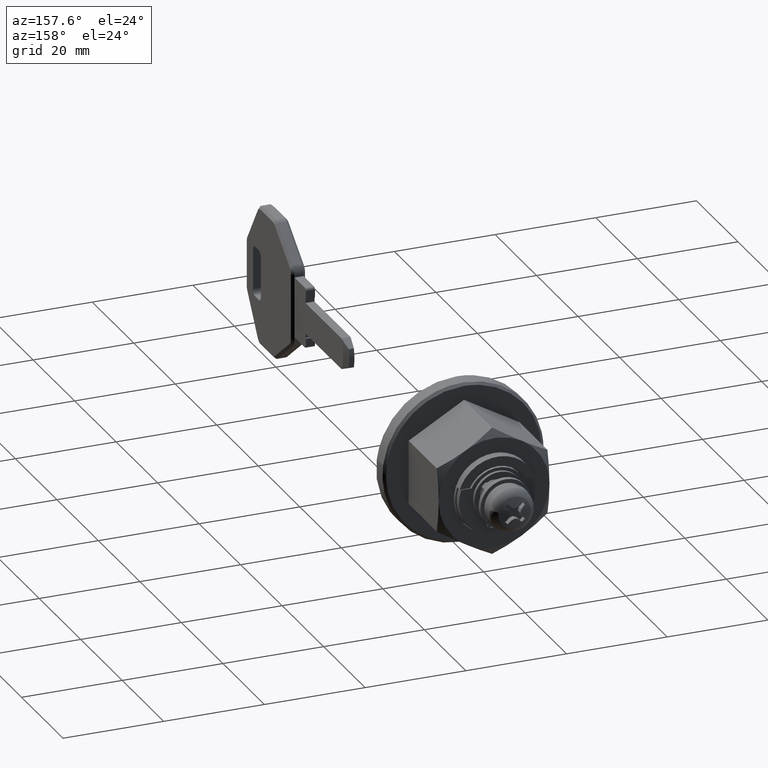
[diagram: clean part render]
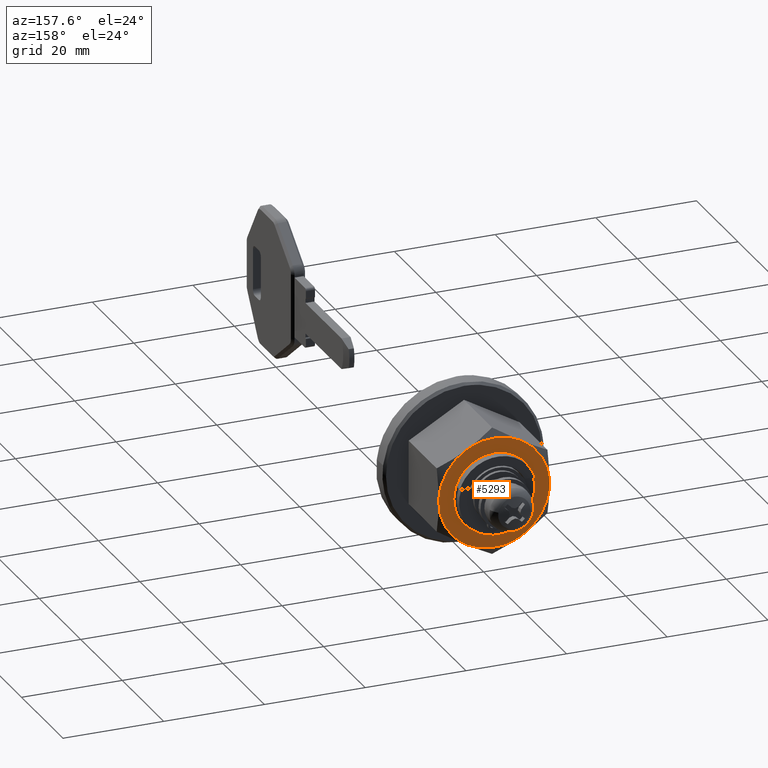
[diagram: same view with one face highlighted and labeled with its STEP entity id]
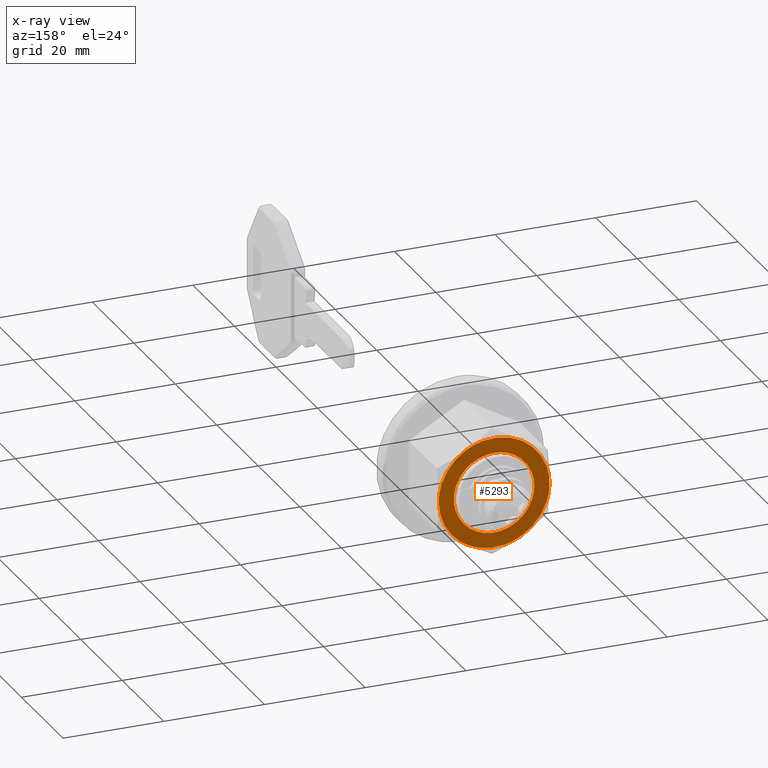
[diagram: x-ray of the same camera — body ghosted, the highlighted face saturated]
A machine part, auxiliary view. The second image highlights one B-rep face of the part: STEP entity #5293.
The next image is the same camera in x-ray: the body ghosted, the highlighted face saturated — about 0% of this face is hidden behind the body in this view.
In plain terms, the highlighted face is a freeform B-spline surface patch.
Its self-contained STEP definition (entity closure, byte-faithful):
#4357=CARTESIAN_POINT('',(25.099999999990700,-7.938129710583054,-0.993024016868745));
#4358=VERTEX_POINT('',#4357);
#4364=CARTESIAN_POINT('',(25.099999999990700,0.0,-8.000000000060197));
#4365=VERTEX_POINT('',#4364);
#4366=CARTESIAN_POINT('',(25.099999999990697,-7.938129710583054,-0.993024016868745));
#4367=CARTESIAN_POINT('',(25.099999999990697,-7.061588800897172,-8.000000000060197));
#4368=CARTESIAN_POINT('',(25.099999999990700,0.0,-8.000000000060197));
#4376=(BOUNDED_CURVE()B_SPLINE_CURVE(2,(#4366,#4367,#4368),.UNSPECIFIED.,.F.,.U.)B_SPLINE_CURVE_WITH_KNOTS((3,3),(0.271473928977921,0.500000000000000),.UNSPECIFIED.)CURVE()GEOMETRIC_REPRESENTATION_ITEM()RATIONAL_B_SPLINE_CURVE((0.954005430260708,0.732265053902206,1.0))REPRESENTATION_ITEM(''));
#4377=EDGE_CURVE('',#4358,#4365,#4376,.T.);
#4379=CARTESIAN_POINT('',(25.099999999990700,7.999695384511334,0.069812284160016));
#4380=VERTEX_POINT('',#4379);
#4381=CARTESIAN_POINT('',(25.099999999990700,0.0,-8.000000000060197));
#4382=CARTESIAN_POINT('',(25.099999999990704,8.0,-8.000000000060199));
#4383=CARTESIAN_POINT('',(25.099999999990700,8.0,-6.019718E-011));
#4384=CARTESIAN_POINT('',(25.099999999990700,8.0,0.034906806738670));
#4385=CARTESIAN_POINT('',(25.099999999990700,7.999695384511334,0.069812284160016));
#4393=(BOUNDED_CURVE()B_SPLINE_CURVE(2,(#4381,#4382,#4383,#4384,#4385),.UNSPECIFIED.,.F.,.U.)B_SPLINE_CURVE_WITH_KNOTS((3,2,3),(0.500000000000000,0.750000000000000,0.751539894345258),.UNSPECIFIED.)CURVE()GEOMETRIC_REPRESENTATION_ITEM()RATIONAL_B_SPLINE_CURVE((1.0,0.707106781186548,1.0,0.998195901554338,0.996414028076635))REPRESENTATION_ITEM(''));
#4394=EDGE_CURVE('',#4365,#4380,#4393,.T.);
#4474=CARTESIAN_POINT('',(25.099999999990700,0.0,7.999999999939804));
#4475=VERTEX_POINT('',#4474);
#4476=CARTESIAN_POINT('',(25.099999999990704,7.999695384511334,0.069812284160016));
#4477=CARTESIAN_POINT('',(25.099999999990700,7.930489684297400,7.999999999939806));
#4478=CARTESIAN_POINT('',(25.099999999990700,0.0,7.999999999939804));
#4486=(BOUNDED_CURVE()B_SPLINE_CURVE(2,(#4476,#4477,#4478),.UNSPECIFIED.,.F.,.U.)B_SPLINE_CURVE_WITH_KNOTS((3,3),(0.751539894345258,1.0),.UNSPECIFIED.)CURVE()GEOMETRIC_REPRESENTATION_ITEM()RATIONAL_B_SPLINE_CURVE((0.996414028076637,0.708910879632208,1.0))REPRESENTATION_ITEM(''));
#4487=EDGE_CURVE('',#4380,#4475,#4486,.T.);
#4489=CARTESIAN_POINT('',(25.099999999990700,0.0,7.999999999939804));
#4490=CARTESIAN_POINT('',(25.099999999990704,-8.0,7.999999999939806));
#4491=CARTESIAN_POINT('',(25.099999999990700,-8.0,-6.019718E-011));
#4492=CARTESIAN_POINT('',(25.099999999990704,-8.0,-0.498439420500057));
#4493=CARTESIAN_POINT('',(25.099999999990704,-7.938129710583053,-0.993024016868745));
#4501=(BOUNDED_CURVE()B_SPLINE_CURVE(2,(#4489,#4490,#4491,#4492,#4493),.UNSPECIFIED.,.F.,.U.)B_SPLINE_CURVE_WITH_KNOTS((3,2,3),(0.0,0.250000000000000,0.271473928977921),.UNSPECIFIED.)CURVE()GEOMETRIC_REPRESENTATION_ITEM()RATIONAL_B_SPLINE_CURVE((1.0,0.707106781186548,1.0,0.974841727284341,0.954005430260708))REPRESENTATION_ITEM(''));
#4502=EDGE_CURVE('',#4475,#4358,#4501,.T.);
#5190=CARTESIAN_POINT('',(25.099999999990700,-12.098899957353160,-12.098899957215041));
#5191=CARTESIAN_POINT('',(25.099999999990700,12.098900547307650,-12.098899957215041));
#5192=CARTESIAN_POINT('',(25.099999999990700,-12.098899957353160,12.098900547301030));
#5193=CARTESIAN_POINT('',(25.099999999990700,12.098900547307650,12.098900547301030));
#5194=B_SPLINE_SURFACE_WITH_KNOTS('',1,1,((#5190,#5192),(#5191,#5193)),.UNSPECIFIED.,.F.,.F.,.U.,(2,2),(2,2),(0.0,24.197800504660808),(0.0,24.197800504516071),.UNSPECIFIED.);
#5195=CARTESIAN_POINT('',(25.099999999990700,-5.499999999934270,-9.526279441514921));
#5196=VERTEX_POINT('',#5195);
#5197=CARTESIAN_POINT('',(25.099999999990700,5.499999999934249,-9.526279441514930));
#5198=VERTEX_POINT('',#5197);
#5199=CARTESIAN_POINT('',(25.099999999990700,-5.499999999934280,-9.526279441514925));
#5200=CARTESIAN_POINT('',(25.099999999990708,-2.081668E-014,-12.701705922019936));
#5201=CARTESIAN_POINT('',(25.099999999990700,5.499999999934250,-9.526279441514943));
#5209=(BOUNDED_CURVE()B_SPLINE_CURVE(2,(#5199,#5200,#5201),.UNSPECIFIED.,.F.,.U.)CURVE()GEOMETRIC_REPRESENTATION_ITEM()QUASI_UNIFORM_CURVE()RATIONAL_B_SPLINE_CURVE((1.0,0.866025403784438,1.0))REPRESENTATION_ITEM(''));
#5210=EDGE_CURVE('',#5196,#5198,#5209,.T.);
#5211=ORIENTED_EDGE('',*,*,#5210,.T.);
#5212=CARTESIAN_POINT('',(25.099999999990700,10.999999999868500,0.0));
#5213=VERTEX_POINT('',#5212);
#5214=CARTESIAN_POINT('',(25.099999999990700,5.499999999934255,-9.526279441514939));
#5215=CARTESIAN_POINT('',(25.099999999990697,10.999999999868500,-6.350852961009957));
#5216=CARTESIAN_POINT('',(25.099999999990700,10.999999999868500,0.0));
#5224=(BOUNDED_CURVE()B_SPLINE_CURVE(2,(#5214,#5215,#5216),.UNSPECIFIED.,.F.,.U.)CURVE()GEOMETRIC_REPRESENTATION_ITEM()QUASI_UNIFORM_CURVE()RATIONAL_B_SPLINE_CURVE((1.0,0.866025403784439,1.0))REPRESENTATION_ITEM(''));
#5225=EDGE_CURVE('',#5198,#5213,#5224,.T.);
#5226=ORIENTED_EDGE('',*,*,#5225,.T.);
#5227=CARTESIAN_POINT('',(25.099999999990700,5.499999999934310,9.526279441514900));
#5228=VERTEX_POINT('',#5227);
#5229=CARTESIAN_POINT('',(25.099999999990700,5.499999999934314,9.526279441514907));
#5230=CARTESIAN_POINT('',(25.099999999990700,10.999999999868500,6.350852961009912));
#5231=CARTESIAN_POINT('',(25.099999999990700,10.999999999868500,0.0));
#5239=(BOUNDED_CURVE()B_SPLINE_CURVE(2,(#5229,#5230,#5231),.UNSPECIFIED.,.F.,.U.)CURVE()GEOMETRIC_REPRESENTATION_ITEM()QUASI_UNIFORM_CURVE()RATIONAL_B_SPLINE_CURVE((1.0,0.866025403784440,1.0))REPRESENTATION_ITEM(''));
#5240=EDGE_CURVE('',#5228,#5213,#5239,.T.);
#5241=ORIENTED_EDGE('',*,*,#5240,.F.);
#5242=CARTESIAN_POINT('',(25.099999999990700,-5.499999999934399,9.526279441514852));
#5243=VERTEX_POINT('',#5242);
#5244=CARTESIAN_POINT('',(25.099999999990700,5.499999999934314,9.526279441514907));
#5245=CARTESIAN_POINT('',(25.099999999990693,-5.724587E-014,12.701705922020006));
#5246=CARTESIAN_POINT('',(25.099999999990700,-5.499999999934399,9.526279441514856));
#5254=(BOUNDED_CURVE()B_SPLINE_CURVE(2,(#5244,#5245,#5246),.UNSPECIFIED.,.F.,.U.)CURVE()GEOMETRIC_REPRESENTATION_ITEM()QUASI_UNIFORM_CURVE()RATIONAL_B_SPLINE_CURVE((1.0,0.866025403784433,1.0))REPRESENTATION_ITEM(''));
#5255=EDGE_CURVE('',#5228,#5243,#5254,.T.);
#5256=ORIENTED_EDGE('',*,*,#5255,.T.);
#5257=CARTESIAN_POINT('',(25.099999999990700,-11.0,0.0));
#5258=VERTEX_POINT('',#5257);
#5259=CARTESIAN_POINT('',(25.099999999990700,-5.499999999934399,9.526279441514856));
#5260=CARTESIAN_POINT('',(25.099999999990697,-10.999999999868498,6.350852961009847));
#5261=CARTESIAN_POINT('',(25.099999999990700,-11.0,0.0));
#5269=(BOUNDED_CURVE()B_SPLINE_CURVE(2,(#5259,#5260,#5261),.UNSPECIFIED.,.F.,.U.)CURVE()GEOMETRIC_REPRESENTATION_ITEM()QUASI_UNIFORM_CURVE()RATIONAL_B_SPLINE_CURVE((1.0,0.866025403784443,1.0))REPRESENTATION_ITEM(''));
#5270=EDGE_CURVE('',#5243,#5258,#5269,.T.);
#5271=ORIENTED_EDGE('',*,*,#5270,.T.);
#5272=CARTESIAN_POINT('',(25.099999999990700,-11.0,0.0));
#5273=CARTESIAN_POINT('',(25.099999999990708,-10.999999999868502,-6.350852961009939));
#5274=CARTESIAN_POINT('',(25.099999999990700,-5.499999999934280,-9.526279441514925));
#5282=(BOUNDED_CURVE()B_SPLINE_CURVE(2,(#5272,#5273,#5274),.UNSPECIFIED.,.F.,.U.)CURVE()GEOMETRIC_REPRESENTATION_ITEM()QUASI_UNIFORM_CURVE()RATIONAL_B_SPLINE_CURVE((1.0,0.866025403784439,1.0))REPRESENTATION_ITEM(''));
#5283=EDGE_CURVE('',#5258,#5196,#5282,.T.);
#5284=ORIENTED_EDGE('',*,*,#5283,.T.);
#5285=EDGE_LOOP('',(#5211,#5226,#5241,#5256,#5271,#5284));
#5286=FACE_OUTER_BOUND('',#5285,.T.);
#5287=ORIENTED_EDGE('',*,*,#4394,.F.);
#5288=ORIENTED_EDGE('',*,*,#4377,.F.);
#5289=ORIENTED_EDGE('',*,*,#4502,.F.);
#5290=ORIENTED_EDGE('',*,*,#4487,.F.);
#5291=EDGE_LOOP('',(#5287,#5288,#5289,#5290));
#5292=FACE_BOUND('',#5291,.T.);
#5293=ADVANCED_FACE('',(#5286,#5292),#5194,.T.);